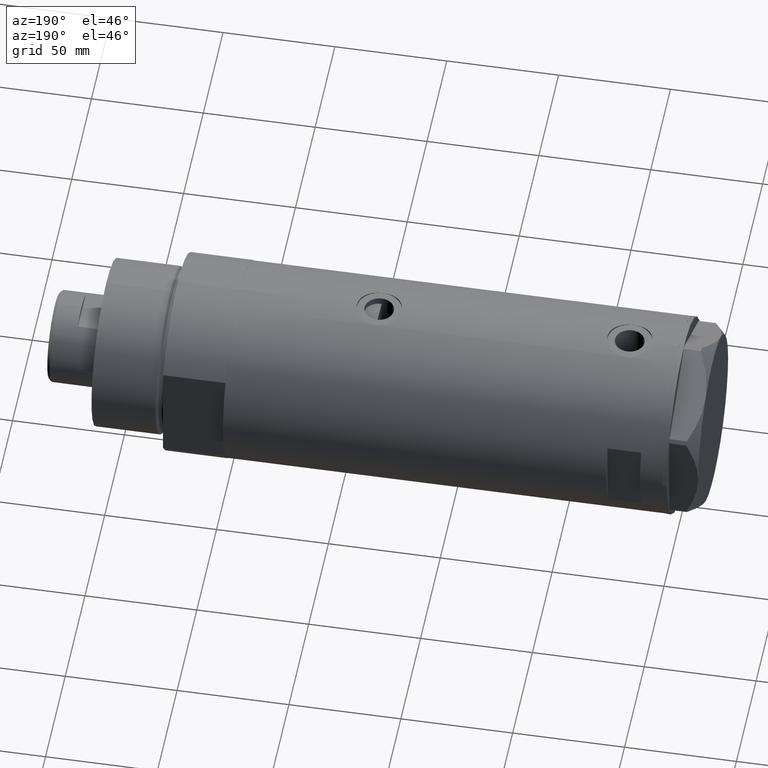
[diagram: clean part render]
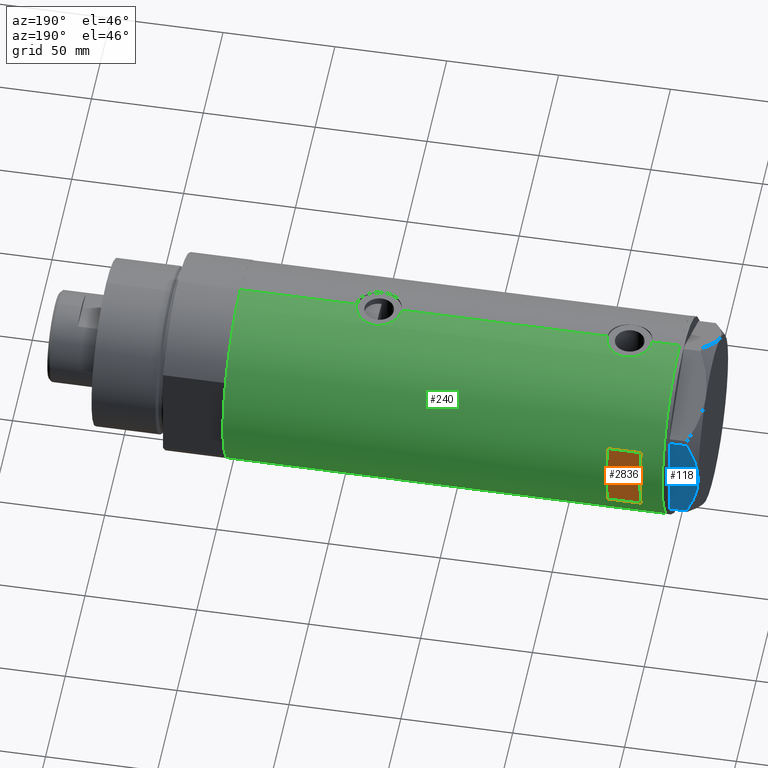
[diagram: same view with three faces highlighted in distinct colors, each labeled with its STEP entity id]
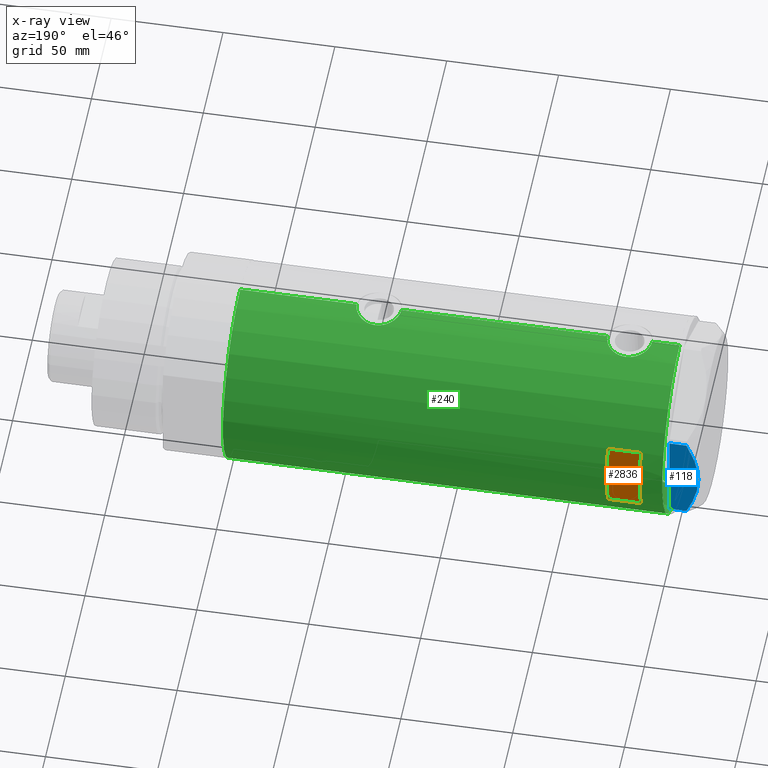
[diagram: x-ray of the same camera — body ghosted, the three highlighted faces saturated]
A machine part, auxiliary view with three faces highlighted in distinct colors.
The next image is the same camera in x-ray (body ghosted, the three faces saturated) — at least one of them is partly hidden behind the body in this view.
Their STEP definitions:

[orange] entity #2836 — the highlighted planar face has unit normal (0, -1, -0).
#26 = EDGE_CURVE ( 'NONE', #1117, #3101, #2279, .T. ) ;
#107 = EDGE_CURVE ( 'NONE', #2888, #1769, #2944, .T. ) ;
#284 = EDGE_LOOP ( 'NONE', ( #4212, #573, #4383, #3579 ) ) ;
#573 = ORIENTED_EDGE ( 'NONE', *, *, #107, .F. ) ;
#715 = VECTOR ( 'NONE', #3619, 1000.000000000000000 ) ;
#849 = AXIS2_PLACEMENT_3D ( 'NONE', #1237, #1973, #4079 ) ;
#1117 = VERTEX_POINT ( 'NONE', #2468 ) ;
#1130 = VECTOR ( 'NONE', #1269, 1000.000000000000000 ) ;
#1237 = CARTESIAN_POINT ( 'NONE',  ( -44.00000000000000000, 40.99999999999999289, 88.20000000000000284 ) ) ;
#1269 = DIRECTION ( 'NONE',  ( 1.000000000000000000, -0.000000000000000000, -0.000000000000000000 ) ) ;
#1418 = CARTESIAN_POINT ( 'NONE',  ( -15.96871942267132027, 40.99999999999999289, -98.20000000000000284 ) ) ;
#1552 = LINE ( 'NONE', #1587, #715 ) ;
#1587 = CARTESIAN_POINT ( 'NONE',  ( 15.96871942267132027, 40.99999999999999289, -98.20000000000000284 ) ) ;
#1769 = VERTEX_POINT ( 'NONE', #1905 ) ;
#1792 = VECTOR ( 'NONE', #3749, 1000.000000000000000 ) ;
#1903 = DIRECTION ( 'NONE',  ( 1.000000000000000000, -0.000000000000000000, -0.000000000000000000 ) ) ;
#1905 = CARTESIAN_POINT ( 'NONE',  ( 15.96871942267132027, 40.99999999999999289, 73.20000000000000284 ) ) ;
#1946 = EDGE_CURVE ( 'NONE', #2888, #1117, #3147, .T. ) ;
#1973 = DIRECTION ( 'NONE',  ( 0.000000000000000000, -1.000000000000000000, -0.000000000000000000 ) ) ;
#2279 = LINE ( 'NONE', #4379, #1130 ) ;
#2468 = CARTESIAN_POINT ( 'NONE',  ( -15.96871942267132027, 40.99999999999999289, 88.20000000000000284 ) ) ;
#2626 = CARTESIAN_POINT ( 'NONE',  ( 15.96871942267132027, 40.99999999999999289, 88.20000000000000284 ) ) ;
#2816 = CARTESIAN_POINT ( 'NONE',  ( -15.96871942267132027, 40.99999999999999289, 73.20000000000000284 ) ) ;
#2836 = ADVANCED_FACE ( 'NONE', ( #3647 ), #3721, .F. ) ;
#2888 = VERTEX_POINT ( 'NONE', #2816 ) ;
#2944 = LINE ( 'NONE', #2961, #4037 ) ;
#2961 = CARTESIAN_POINT ( 'NONE',  ( -44.00000000000000000, 40.99999999999999289, 73.20000000000000284 ) ) ;
#3101 = VERTEX_POINT ( 'NONE', #2626 ) ;
#3136 = EDGE_CURVE ( 'NONE', #3101, #1769, #1552, .T. ) ;
#3147 = LINE ( 'NONE', #1418, #1792 ) ;
#3579 = ORIENTED_EDGE ( 'NONE', *, *, #26, .T. ) ;
#3619 = DIRECTION ( 'NONE',  ( -0.000000000000000000, -0.000000000000000000, -1.000000000000000000 ) ) ;
#3647 = FACE_OUTER_BOUND ( 'NONE', #284, .T. ) ;
#3721 = PLANE ( 'NONE',  #849 ) ;
#3749 = DIRECTION ( 'NONE',  ( 0.000000000000000000, 0.000000000000000000, 1.000000000000000000 ) ) ;
#4037 = VECTOR ( 'NONE', #1903, 1000.000000000000000 ) ;
#4079 = DIRECTION ( 'NONE',  ( 0.000000000000000000, 0.000000000000000000, -1.000000000000000000 ) ) ;
#4212 = ORIENTED_EDGE ( 'NONE', *, *, #3136, .T. ) ;
#4379 = CARTESIAN_POINT ( 'NONE',  ( -44.00000000000000000, 40.99999999999999289, 88.20000000000000284 ) ) ;
#4383 = ORIENTED_EDGE ( 'NONE', *, *, #1946, .T. ) ;

[blue] entity #118 — the highlighted planar face has unit normal (0, -1, -0).
#4 = ORIENTED_EDGE ( 'NONE', *, *, #291, .T. ) ;
#103 = VECTOR ( 'NONE', #1067, 1000.000000000000000 ) ;
#118 = ADVANCED_FACE ( 'NONE', ( #3162 ), #3182, .F. ) ;
#128 = CARTESIAN_POINT ( 'NONE',  ( 37.75000000000000711, 0.9015134592203699615, 12.99999999999999112 ) ) ;
#218 = CARTESIAN_POINT ( 'NONE',  ( 37.75000000000000000, 20.67497266190835958, 7.709124142616976094 ) ) ;
#222 = DIRECTION ( 'NONE',  ( 4.775569585389645902E-16, -1.000000000000000000, 0.000000000000000000 ) ) ;
#282 = CARTESIAN_POINT ( 'NONE',  ( 37.75000000000000000, -3.615248338761618552, 12.99999999999998934 ) ) ;
#291 = EDGE_CURVE ( 'NONE', #4482, #2651, #4332, .T. ) ;
#296 = EDGE_CURVE ( 'NONE', #4258, #2211, #632, .T. ) ;
#376 = ORIENTED_EDGE ( 'NONE', *, *, #1473, .F. ) ;
#447 = VECTOR ( 'NONE', #3307, 1000.000000000000000 ) ;
#577 = CARTESIAN_POINT ( 'NONE',  ( 37.75000000000000711, 1.802777518484591547E-14, 13.00000000000000000 ) ) ;
#632 = B_SPLINE_CURVE_WITH_KNOTS ( 'NONE', 3,
 ( #2897, #128, #2235, #2545, #1844, #2215, #4268, #1869, #749, #3263, #3288, #3929, #2192, #3628 ),
 .UNSPECIFIED., .F., .F.,
 ( 4, 2, 2, 2, 2, 2, 4 ),
 ( 0.07749717587205659508, 0.08017617902235897598, 0.08285518217266137075, 0.08821318847326614643, 0.09357119477387092210, 0.09625019792417330300, 0.09892920107447569777 ),
 .UNSPECIFIED. ) ;
#656 = CARTESIAN_POINT ( 'NONE',  ( 37.75000000000000711, 1.802777518484591547E-14, 13.00000000000000000 ) ) ;
#749 = CARTESIAN_POINT ( 'NONE',  ( 37.75000000000000000, 14.04742653794396823, 10.50092616350622166 ) ) ;
#933 = EDGE_LOOP ( 'NONE', ( #376, #4349, #4, #2804, #1157 ) ) ;
#1047 = CARTESIAN_POINT ( 'NONE',  ( 37.75000000000002132, -20.67497266190835958, 13.00000000000000000 ) ) ;
#1067 = DIRECTION ( 'NONE',  ( 0.000000000000000000, 0.000000000000000000, 1.000000000000000000 ) ) ;
#1075 = EDGE_CURVE ( 'NONE', #2569, #4482, #3701, .T. ) ;
#1157 = ORIENTED_EDGE ( 'NONE', *, *, #296, .F. ) ;
#1367 = CARTESIAN_POINT ( 'NONE',  ( 37.75000000000001421, -14.89874562435959504, 10.17375260246623547 ) ) ;
#1434 = CARTESIAN_POINT ( 'NONE',  ( 37.75000000000002132, -21.79497266190837124, 13.00000000000000000 ) ) ;
#1473 = EDGE_CURVE ( 'NONE', #2569, #4258, #4263, .T. ) ;
#1844 = CARTESIAN_POINT ( 'NONE',  ( 37.75000000000000711, 4.503994958793054337, 12.74237531377021604 ) ) ;
#1869 = CARTESIAN_POINT ( 'NONE',  ( 37.75000000000000711, 12.34877760086738441, 11.06613894200179260 ) ) ;
#2033 = CARTESIAN_POINT ( 'NONE',  ( 37.75000000000002132, -11.46926194450820802, 11.30493988086502632 ) ) ;
#2055 = CARTESIAN_POINT ( 'NONE',  ( 37.75000000000002132, -20.67497266190837024, 7.709124142616982311 ) ) ;
#2074 = CARTESIAN_POINT ( 'NONE',  ( 37.75000000000001421, -19.06473524669325315, 8.482612457517156201 ) ) ;
#2119 = CARTESIAN_POINT ( 'NONE',  ( 37.75000000000001421, -12.33018559404072256, 11.04557586999680296 ) ) ;
#2192 = CARTESIAN_POINT ( 'NONE',  ( 37.75000000000000000, 19.86857906850807964, 8.096480699986591034 ) ) ;
#2211 = VERTEX_POINT ( 'NONE', #218 ) ;
#2215 = CARTESIAN_POINT ( 'NONE',  ( 37.75000000000000000, 7.161343005612795132, 12.36677985830370829 ) ) ;
#2235 = CARTESIAN_POINT ( 'NONE',  ( 37.75000000000000000, 1.811728074765807994, 12.96720910498919466 ) ) ;
#2433 = CARTESIAN_POINT ( 'NONE',  ( 37.75000000000002132, -17.42329546264822682, 9.202188366597432889 ) ) ;
#2545 = CARTESIAN_POINT ( 'NONE',  ( 37.75000000000000711, 3.611424898442247233, 12.83826937481875596 ) ) ;
#2569 = VERTEX_POINT ( 'NONE', #4475 ) ;
#2651 = VERTEX_POINT ( 'NONE', #4284 ) ;
#2804 = ORIENTED_EDGE ( 'NONE', *, *, #2935, .T. ) ;
#2897 = CARTESIAN_POINT ( 'NONE',  ( 37.75000000000000711, 1.802777518484591547E-14, 13.00000000000000000 ) ) ;
#2935 = EDGE_CURVE ( 'NONE', #2651, #2211, #3099, .T. ) ;
#3099 = LINE ( 'NONE', #3475, #103 ) ;
#3162 = FACE_OUTER_BOUND ( 'NONE', #933, .T. ) ;
#3182 = PLANE ( 'NONE',  #4257 ) ;
#3263 = CARTESIAN_POINT ( 'NONE',  ( 37.75000000000000711, 16.56731140591521978, 9.531835068628826235 ) ) ;
#3288 = CARTESIAN_POINT ( 'NONE',  ( 37.75000000000000000, 17.40390235304479560, 9.187919079516760235 ) ) ;
#3307 = DIRECTION ( 'NONE',  ( -4.775569585389645902E-16, 1.000000000000000000, 0.000000000000000000 ) ) ;
#3393 = DIRECTION ( 'NONE',  ( -1.000000000000000000, -4.775569585389645902E-16, 0.000000000000000000 ) ) ;
#3475 = CARTESIAN_POINT ( 'NONE',  ( 37.75000000000000000, 20.67497266190835958, 13.00000000000000000 ) ) ;
#3516 = DIRECTION ( 'NONE',  ( 0.000000000000000000, 0.000000000000000000, -1.000000000000000000 ) ) ;
#3628 = CARTESIAN_POINT ( 'NONE',  ( 37.75000000000000000, 20.67497266190835958, 7.709124142616976094 ) ) ;
#3683 = VECTOR ( 'NONE', #3516, 1000.000000000000000 ) ;
#3689 = CARTESIAN_POINT ( 'NONE',  ( 37.75000000000002132, -20.67497266190835958, 0.000000000000000000 ) ) ;
#3701 = LINE ( 'NONE', #1047, #3683 ) ;
#3798 = CARTESIAN_POINT ( 'NONE',  ( 37.75000000000002132, -14.04433099034386778, 10.48027127384610679 ) ) ;
#3900 = CARTESIAN_POINT ( 'NONE',  ( 37.75000000000002132, -21.79497266190837124, 0.000000000000000000 ) ) ;
#3929 = CARTESIAN_POINT ( 'NONE',  ( 37.75000000000000000, 19.05362936076134162, 8.470554105526112210 ) ) ;
#4201 = CARTESIAN_POINT ( 'NONE',  ( 37.75000000000000711, -7.143641079404811300, 12.47474846747315347 ) ) ;
#4257 = AXIS2_PLACEMENT_3D ( 'NONE', #1434, #3393, #222 ) ;
#4258 = VERTEX_POINT ( 'NONE', #577 ) ;
#4263 = B_SPLINE_CURVE_WITH_KNOTS ( 'NONE', 3,
 ( #2055, #2074, #2433, #1367, #3798, #2119, #2033, #4201, #282, #656 ),
 .UNSPECIFIED., .F., .F.,
 ( 4, 2, 2, 2, 4 ),
 ( 0.05601050456479946676, 0.06138217239161374711, 0.06406800630502089422, 0.06675384021842803439, 0.07749717587205659508 ),
 .UNSPECIFIED. ) ;
#4268 = CARTESIAN_POINT ( 'NONE',  ( 37.75000000000000711, 8.905753572404311313, 11.99914237172014353 ) ) ;
#4284 = CARTESIAN_POINT ( 'NONE',  ( 37.75000000000000000, 20.67497266190835958, 0.000000000000000000 ) ) ;
#4332 = LINE ( 'NONE', #3900, #447 ) ;
#4349 = ORIENTED_EDGE ( 'NONE', *, *, #1075, .T. ) ;
#4475 = CARTESIAN_POINT ( 'NONE',  ( 37.75000000000002132, -20.67497266190837024, 7.709124142616982311 ) ) ;
#4482 = VERTEX_POINT ( 'NONE', #3689 ) ;

[green] entity #240 — the highlighted cylindrical surface (partial cylindrical patch) has radius 44 mm, axis along (-1, -0, 0).
#1 = CARTESIAN_POINT ( 'NONE',  ( -44.00000000000000000, 5.388445781992449847E-15, -68.15000000000001990 ) ) ;
#7 = LINE ( 'NONE', #3564, #947 ) ;
#11 = CARTESIAN_POINT ( 'NONE',  ( 42.84850876528982155, 10.00026482975808051, -35.44941694529577347 ) ) ;
#29 = CARTESIAN_POINT ( 'NONE',  ( -43.64133398152736021, 5.607447751852158824, -64.66786045012435125 ) ) ;
#32 = ORIENTED_EDGE ( 'NONE', *, *, #2234, .F. ) ;
#37 = DIRECTION ( 'NONE',  ( 1.000000000000000000, 0.000000000000000000, 0.000000000000000000 ) ) ;
#44 = CARTESIAN_POINT ( 'NONE',  ( 44.00000000000002132, 0.3269372501759380545, -26.10000000000001918 ) ) ;
#64 = CARTESIAN_POINT ( 'NONE',  ( 42.96879251999280314, 9.470609476412120031, -39.32722899941056482 ) ) ;
#74 = CARTESIAN_POINT ( 'NONE',  ( -44.00000000000000711, 0.4081702738789189655, -68.15000000000003411 ) ) ;
#98 = CARTESIAN_POINT ( 'NONE',  ( -43.95549163632549750, 2.014511215452028825, -67.83058955704980519 ) ) ;
#102 = ORIENTED_EDGE ( 'NONE', *, *, #1341, .T. ) ;
#166 = CARTESIAN_POINT ( 'NONE',  ( -43.97181775256600389, 1.624866278047415680, 68.15107081614905837 ) ) ;
#172 = CARTESIAN_POINT ( 'NONE',  ( -43.83593455218809254, 3.811409182021277431, 79.17014927703502281 ) ) ;
#200 = CARTESIAN_POINT ( 'NONE',  ( -44.00000000000000000, 5.388445916248353619E-15, 98.20000000000000284 ) ) ;
#214 = CARTESIAN_POINT ( 'NONE',  ( 43.13962074468734897, 8.660138848900670538, 80.91089741163936822 ) ) ;
#221 = ORIENTED_EDGE ( 'NONE', *, *, #4110, .F. ) ;
#240 = ADVANCED_FACE ( 'NONE', ( #1150, #2921 ), #393, .T. ) ;
#257 = VECTOR ( 'NONE', #4495, 1000.000000000000000 ) ;
#261 = CARTESIAN_POINT ( 'NONE',  ( 42.96879251999280314, 9.470609476412112926, 72.67277100058944939 ) ) ;
#276 = CARTESIAN_POINT ( 'NONE',  ( -43.91413175532568403, 2.773555030353458850, -56.28415761633254277 ) ) ;
#277 = CARTESIAN_POINT ( 'NONE',  ( 44.00000000000000000, 2.836945177865671897E-15, -46.10000000000000853 ) ) ;
#294 = CARTESIAN_POINT ( 'NONE',  ( -43.55973179376098869, 6.209370339246239823, -62.72061767059870618 ) ) ;
#297 = ORIENTED_EDGE ( 'NONE', *, *, #3157, .F. ) ;
#310 = VECTOR ( 'NONE', #4294, 1000.000000000000000 ) ;
#320 = CARTESIAN_POINT ( 'NONE',  ( -43.97754480947186551, 1.419697478855586059, -55.80996723947924210 ) ) ;
#344 = CARTESIAN_POINT ( 'NONE',  ( 43.98169492814103165, 1.310824514239766536, 85.81919780380685836 ) ) ;
#355 = CARTESIAN_POINT ( 'NONE',  ( 43.71454618729810448, 5.012329428678959253, 84.55936974058313638 ) ) ;
#356 = CARTESIAN_POINT ( 'NONE',  ( 43.07598348983508174, 8.971306953823013686, -40.52969423187187914 ) ) ;
#372 = CARTESIAN_POINT ( 'NONE',  ( 43.80640706382536109, 4.134078575915387965, 85.01132821562090669 ) ) ;
#393 = CYLINDRICAL_SURFACE ( 'NONE', #980, 44.00000000000000000 ) ;
#422 = CARTESIAN_POINT ( 'NONE',  ( 0.000000000000000000, 0.000000000000000000, -98.20000000000000284 ) ) ;
#423 = CARTESIAN_POINT ( 'NONE',  ( 42.86370458161098185, 9.935807968041572735, -37.40904550429866049 ) ) ;
#431 = VERTEX_POINT ( 'NONE', #1005 ) ;
#433 = CARTESIAN_POINT ( 'NONE',  ( -43.62981559643959883, 5.696090409300659019, -64.48051365414528391 ) ) ;
#437 = VERTEX_POINT ( 'NONE', #277 ) ;
#441 = DIRECTION ( 'NONE',  ( 0.000000000000000000, 0.000000000000000000, 1.000000000000000000 ) ) ;
#517 = CARTESIAN_POINT ( 'NONE',  ( -43.91413175532567692, 2.773555030353453965, 79.81584238366747286 ) ) ;
#542 = CARTESIAN_POINT ( 'NONE',  ( -43.61859254253774054, 5.782454868881351295, 76.59786400894466851 ) ) ;
#563 = CARTESIAN_POINT ( 'NONE',  ( -43.55382423478827292, 6.250151562062086441, 73.79410470512661391 ) ) ;
#585 = CARTESIAN_POINT ( 'NONE',  ( 43.35294442506074120, 7.532526048221051873, 69.29064585508892549 ) ) ;
#588 = CARTESIAN_POINT ( 'NONE',  ( -43.64133398152736021, 5.607447751852152606, 71.43213954987568570 ) ) ;
#612 = CARTESIAN_POINT ( 'NONE',  ( 43.27822890220284791, 7.945655169171516263, 69.79274616710709722 ) ) ;
#613 = CARTESIAN_POINT ( 'NONE',  ( 43.94229162222111285, 2.275476993733913655, -45.84314464222307350 ) ) ;
#631 = VERTEX_POINT ( 'NONE', #1593 ) ;
#635 = CARTESIAN_POINT ( 'NONE',  ( 43.07641822757289418, 8.969229373860565957, 80.33396235790173989 ) ) ;
#650 = DIRECTION ( 'NONE',  ( 0.000000000000000000, 0.000000000000000000, 1.000000000000000000 ) ) ;
#651 = CARTESIAN_POINT ( 'NONE',  ( -43.83593455218809964, 3.811409182021281428, -56.92985072296500704 ) ) ;
#675 = CARTESIAN_POINT ( 'NONE',  ( 43.97062489912108418, 1.639461988184795604, 85.77014626665985020 ) ) ;
#686 = CARTESIAN_POINT ( 'NONE',  ( 43.77712723341632994, 4.432620652875498557, 84.86995009759974096 ) ) ;
#695 = ORIENTED_EDGE ( 'NONE', *, *, #2640, .F. ) ;
#704 = VERTEX_POINT ( 'NONE', #200 ) ;
#711 = CARTESIAN_POINT ( 'NONE',  ( 43.35294442506074120, 7.532526048221052761, -42.70935414491112425 ) ) ;
#715 = VECTOR ( 'NONE', #3619, 1000.000000000000000 ) ;
#744 = CARTESIAN_POINT ( 'NONE',  ( -43.99413512814552263, 0.8228129877960710381, -68.10908314325826041 ) ) ;
#753 = DIRECTION ( 'NONE',  ( 1.000000000000000000, 0.000000000000000000, 0.000000000000000000 ) ) ;
#777 = CARTESIAN_POINT ( 'NONE',  ( 43.61291203895919466, 5.829986172017925128, -44.23128710786829743 ) ) ;
#797 = CARTESIAN_POINT ( 'NONE',  ( 43.92756755766649235, 2.604528169608121946, -26.42286588097656974 ) ) ;
#858 = EDGE_CURVE ( 'NONE', #2835, #4405, #3219, .T. ) ;
#868 = VECTOR ( 'NONE', #441, 1000.000000000000000 ) ;
#876 = CARTESIAN_POINT ( 'NONE',  ( -43.99413512814552263, 0.8228129877960659311, 67.99091685674179075 ) ) ;
#902 = CARTESIAN_POINT ( 'NONE',  ( -43.66555354895124452, 5.415612800338318600, 77.32656357177557993 ) ) ;
#920 = DIRECTION ( 'NONE',  ( 0.000000000000000000, 0.000000000000000000, 1.000000000000000000 ) ) ;
#925 = CARTESIAN_POINT ( 'NONE',  ( -43.55973179376100290, 6.209370339246232717, 73.37938232940132366 ) ) ;
#947 = VECTOR ( 'NONE', #1151, 1000.000000000000000 ) ;
#951 = CARTESIAN_POINT ( 'NONE',  ( 43.46520118248735542, 6.843279251446916511, 68.60101672787835980 ) ) ;
#954 = CARTESIAN_POINT ( 'NONE',  ( -43.59995593514495482, 5.920088975424566691, 76.21417908691780951 ) ) ;
#971 = CARTESIAN_POINT ( 'NONE',  ( 44.00000000000002132, 0.6630566900259825536, 65.90000000000003411 ) ) ;
#978 = CARTESIAN_POINT ( 'NONE',  ( -43.57657963456318839, 6.089610171536609329, -60.47821460419189066 ) ) ;
#980 = AXIS2_PLACEMENT_3D ( 'NONE', #4290, #2167, #37 ) ;
#993 = CIRCLE ( 'NONE', #4197, 44.00000000000000000 ) ;
#999 = ORIENTED_EDGE ( 'NONE', *, *, #1885, .F. ) ;
#1005 = CARTESIAN_POINT ( 'NONE',  ( -44.00000000000000000, 6.472851849715296073E-16, -55.65000000000000568 ) ) ;
#1017 = CARTESIAN_POINT ( 'NONE',  ( 42.92624534982631701, 9.661626915142809580, 73.29991995855291975 ) ) ;
#1039 = CARTESIAN_POINT ( 'NONE',  ( 43.50382207688846847, 6.605942769308303930, 83.43604688838220795 ) ) ;
#1050 = B_SPLINE_CURVE_WITH_KNOTS ( 'NONE', 3,
 ( #2320, #971, #4164, #1703, #2702, #2369, #3713, #3802, #3470, #3759, #1373, #1307, #951, #585, #612, #3779, #4141, #3428, #3409, #1720, #261, #1017, #3139, #4494, #1969, #3094, #4117, #3386, #2348, #2392, #635, #214, #4070, #1636, #3042, #3287, #2965, #1039, #3205, #3821, #355, #686, #372, #2833, #2781, #675, #344, #4131, #1379, #4151 ),
 .UNSPECIFIED., .F., .F.,
 ( 4, 2, 2, 2, 2, 2, 2, 2, 2, 2, 2, 2, 2, 2, 2, 2, 2, 2, 2, 2, 2, 2, 2, 2, 4 ),
 ( 2.479523669370822448E-18, 0.001960456513248879339, 0.002940684769873313370, 0.003920913026497747401, 0.005881369539746631077, 0.006861597796371071180, 0.007841826052995510415, 0.009802282566244392356, 0.01078251082286883072, 0.01176273907949326909, 0.01274296733611770746, 0.01372319559274214583, 0.01568365210599106593, 0.01764410861923998430, 0.01960456513248890267, 0.02058479338911334278, 0.02156502164573777941, 0.02254524990236221951, 0.02352547815898665615, 0.02548593467223552941, 0.02646616292885996952, 0.02744639118548440615, 0.02940684769873327942, 0.03038707595535771258, 0.03136730421198213881 ),
 .UNSPECIFIED. ) ;
#1061 = CARTESIAN_POINT ( 'NONE',  ( 43.57657781376907025, 6.094873943596692101, -44.03474301119596390 ) ) ;
#1086 = CARTESIAN_POINT ( 'NONE',  ( 43.97062489912107708, 1.639461988184801156, -26.22985373334014625 ) ) ;
#1096 = CARTESIAN_POINT ( 'NONE',  ( -43.80687348212602217, 4.128385987736840512, -66.61048743310966813 ) ) ;
#1117 = VERTEX_POINT ( 'NONE', #2468 ) ;
#1129 = CARTESIAN_POINT ( 'NONE',  ( 43.50265731352001097, 6.601850423195605444, -43.61819167298953914 ) ) ;
#1150 = FACE_BOUND ( 'NONE', #4457, .T. ) ;
#1151 = DIRECTION ( 'NONE',  ( 0.000000000000000000, 0.000000000000000000, 1.000000000000000000 ) ) ;
#1153 = CARTESIAN_POINT ( 'NONE',  ( 44.00000000000000000, 0.000000000000000000, -98.20000000000000284 ) ) ;
#1155 = CARTESIAN_POINT ( 'NONE',  ( 43.17306590853065273, 8.492365194390522731, -30.80987467306545113 ) ) ;
#1207 = CARTESIAN_POINT ( 'NONE',  ( -43.67867890111967455, 5.309046579850785541, 70.89577220923978018 ) ) ;
#1212 = CIRCLE ( 'NONE', #1430, 44.00000000000000000 ) ;
#1233 = CARTESIAN_POINT ( 'NONE',  ( -43.58362292239462477, 6.039157555656595733, 75.82263578448043972 ) ) ;
#1244 = EDGE_CURVE ( 'NONE', #3498, #2053, #1212, .T. ) ;
#1260 = CARTESIAN_POINT ( 'NONE',  ( -44.00000000000000000, 5.388445916248353619E-15, -98.20000000000000284 ) ) ;
#1285 = CARTESIAN_POINT ( 'NONE',  ( -43.99999999999997158, 0.4081702738789203533, 67.94999999999997442 ) ) ;
#1290 = CARTESIAN_POINT ( 'NONE',  ( -44.00000000000000000, 4.742435893011557518E-16, 80.45000000000001705 ) ) ;
#1307 = CARTESIAN_POINT ( 'NONE',  ( 43.50265731352001808, 6.601850423195591233, 68.38180832701048928 ) ) ;
#1331 = CARTESIAN_POINT ( 'NONE',  ( 44.00000000000000000, 2.836945177865671897E-15, -46.10000000000000853 ) ) ;
#1341 = EDGE_CURVE ( 'NONE', #2835, #704, #3245, .T. ) ;
#1344 = CARTESIAN_POINT ( 'NONE',  ( -43.58362292239463187, 6.039157555656604615, -60.27736421551959722 ) ) ;
#1352 = LINE ( 'NONE', #4118, #257 ) ;
#1373 = CARTESIAN_POINT ( 'NONE',  ( 43.57657781376909156, 6.094873943596678778, 67.96525698880405741 ) ) ;
#1379 = CARTESIAN_POINT ( 'NONE',  ( 44.00000000000000711, 0.3269372501759374994, 85.90000000000001990 ) ) ;
#1400 = DIRECTION ( 'NONE',  ( 1.000000000000000000, 0.000000000000000000, 0.000000000000000000 ) ) ;
#1401 = CARTESIAN_POINT ( 'NONE',  ( -43.59867737633045692, 5.931302618788640402, -63.91249495029889260 ) ) ;
#1409 = CARTESIAN_POINT ( 'NONE',  ( 43.13897484505559987, 8.663345277311671921, -41.10529600060514355 ) ) ;
#1415 = EDGE_CURVE ( 'NONE', #3498, #437, #3736, .T. ) ;
#1418 = CARTESIAN_POINT ( 'NONE',  ( -15.96871942267132027, 40.99999999999999289, -98.20000000000000284 ) ) ;
#1421 = ORIENTED_EDGE ( 'NONE', *, *, #3136, .F. ) ;
#1430 = AXIS2_PLACEMENT_3D ( 'NONE', #422, #1804, #753 ) ;
#1431 = CARTESIAN_POINT ( 'NONE',  ( 44.00000000000000000, -3.917142467416489149E-21, -26.10000000000000497 ) ) ;
#1477 = CARTESIAN_POINT ( 'NONE',  ( 0.000000000000000000, 0.000000000000000000, 73.20000000000018758 ) ) ;
#1499 = CARTESIAN_POINT ( 'NONE',  ( 43.50382207688846847, 6.605942769308304818, -28.56395311161779915 ) ) ;
#1511 = CARTESIAN_POINT ( 'NONE',  ( -43.87596296923811678, 3.305851531861740522, -67.20803585876262787 ) ) ;
#1552 = LINE ( 'NONE', #1587, #715 ) ;
#1587 = CARTESIAN_POINT ( 'NONE',  ( 15.96871942267132027, 40.99999999999999289, -98.20000000000000284 ) ) ;
#1589 = CARTESIAN_POINT ( 'NONE',  ( -44.00000000000000000, 5.388445781982983516E-15, 67.95000000000001705 ) ) ;
#1593 = CARTESIAN_POINT ( 'NONE',  ( 44.00000000000000000, -3.917142467416489149E-21, -26.10000000000000497 ) ) ;
#1595 = CARTESIAN_POINT ( 'NONE',  ( -43.71938389712227746, 4.966728892888062852, 78.01614452340872674 ) ) ;
#1602 = ORIENTED_EDGE ( 'NONE', *, *, #2587, .F. ) ;
#1609 = CARTESIAN_POINT ( 'NONE',  ( 44.00000000000000000, -2.552687571866728611E-15, 65.90000000000001990 ) ) ;
#1621 = CARTESIAN_POINT ( 'NONE',  ( -43.74833112883977293, 4.708208586952001617, 78.33050383508880543 ) ) ;
#1622 = VERTEX_POINT ( 'NONE', #3242 ) ;
#1636 = CARTESIAN_POINT ( 'NONE',  ( 43.24261242176996234, 8.130827601038829400, 81.73055186854172405 ) ) ;
#1638 = CARTESIAN_POINT ( 'NONE',  ( -43.74805001749254529, 4.711035428619386956, 70.07223935874202425 ) ) ;
#1652 = CIRCLE ( 'NONE', #4192, 44.00000000000000000 ) ;
#1703 = CARTESIAN_POINT ( 'NONE',  ( 43.94229162222111285, 2.275476993733910547, 66.15685535777693360 ) ) ;
#1704 = CARTESIAN_POINT ( 'NONE',  ( -44.00000000000000000, 5.388445781992449847E-15, -68.15000000000001990 ) ) ;
#1712 = ORIENTED_EDGE ( 'NONE', *, *, #3267, .F. ) ;
#1720 = CARTESIAN_POINT ( 'NONE',  ( 42.99303682946563043, 9.360292926890506848, 72.36575779792798357 ) ) ;
#1761 = CARTESIAN_POINT ( 'NONE',  ( 43.04652664061919864, 9.111152824375430725, -31.96541990785411969 ) ) ;
#1769 = VERTEX_POINT ( 'NONE', #1905 ) ;
#1784 = ORIENTED_EDGE ( 'NONE', *, *, #1946, .F. ) ;
#1787 = VECTOR ( 'NONE', #2648, 1000.000000000000000 ) ;
#1792 = VECTOR ( 'NONE', #3749, 1000.000000000000000 ) ;
#1804 = DIRECTION ( 'NONE',  ( 0.000000000000000000, 0.000000000000000000, 1.000000000000000000 ) ) ;
#1805 = AXIS2_PLACEMENT_3D ( 'NONE', #1477, #4181, #2880 ) ;
#1806 = CARTESIAN_POINT ( 'NONE',  ( 42.92624534982631701, 9.661626915142814909, -38.70008004144708735 ) ) ;
#1819 = CARTESIAN_POINT ( 'NONE',  ( -43.83576802966639008, 3.813209221108468938, -66.86865490354712449 ) ) ;
#1829 = CARTESIAN_POINT ( 'NONE',  ( 43.07641822757289418, 8.969229373860574839, -31.66603764209828498 ) ) ;
#1836 = CARTESIAN_POINT ( 'NONE',  ( -43.97181775256600389, 1.624866278047417012, -67.94892918385096436 ) ) ;
#1885 = EDGE_CURVE ( 'NONE', #2188, #704, #1652, .T. ) ;
#1897 = CARTESIAN_POINT ( 'NONE',  ( -43.57657963456318839, 6.089610171536606664, 75.62178539580813208 ) ) ;
#1905 = CARTESIAN_POINT ( 'NONE',  ( 15.96871942267132027, 40.99999999999999289, 73.20000000000000284 ) ) ;
#1912 = CARTESIAN_POINT ( 'NONE',  ( 44.00000000000000000, 0.000000000000000000, -98.20000000000000284 ) ) ;
#1946 = EDGE_CURVE ( 'NONE', #2888, #1117, #3147, .T. ) ;
#1969 = CARTESIAN_POINT ( 'NONE',  ( 42.84863276153905787, 9.999733523508361088, 75.24130095249223871 ) ) ;
#1992 = CARTESIAN_POINT ( 'NONE',  ( -43.87596296923810968, 3.305851531861728976, 68.89196414123739487 ) ) ;
#2015 = CARTESIAN_POINT ( 'NONE',  ( 43.92466059386730137, 2.593004216484785740, -45.76356669671356059 ) ) ;
#2019 = DIRECTION ( 'NONE',  ( -0.000000000000000000, -0.000000000000000000, -1.000000000000000000 ) ) ;
#2028 = CARTESIAN_POINT ( 'NONE',  ( -43.71938389712227035, 4.966728892888067293, -58.08385547659131021 ) ) ;
#2045 = DIRECTION ( 'NONE',  ( 1.000000000000000000, -8.881784197001252323E-16, 0.000000000000000000 ) ) ;
#2051 = CARTESIAN_POINT ( 'NONE',  ( -44.00000000000000000, 0.4135148353567994484, -55.64999999999999858 ) ) ;
#2053 = VERTEX_POINT ( 'NONE', #3599 ) ;
#2060 = CARTESIAN_POINT ( 'NONE',  ( 0.000000000000000000, 0.000000000000000000, 88.20000000000000284 ) ) ;
#2069 = CARTESIAN_POINT ( 'NONE',  ( -43.95446647384544292, 2.010857111636600969, -55.97875773636064878 ) ) ;
#2101 = CARTESIAN_POINT ( 'NONE',  ( 43.27822890220284080, 7.945655169171516263, -42.20725383289290278 ) ) ;
#2113 = CARTESIAN_POINT ( 'NONE',  ( -43.64122538274736485, 5.608286354294326870, -59.13388613036661212 ) ) ;
#2121 = CARTESIAN_POINT ( 'NONE',  ( -44.00000000000000000, 4.742435893011557518E-16, 80.45000000000001705 ) ) ;
#2123 = ORIENTED_EDGE ( 'NONE', *, *, #1415, .F. ) ;
#2127 = B_SPLINE_CURVE_WITH_KNOTS ( 'NONE', 3,
 ( #1331, #2730, #4094, #613, #2015, #3429, #3568, #3527, #3549, #777, #1061, #1129, #3907, #711, #2101, #4227, #1409, #356, #2173, #2905, #64, #1806, #4523, #423, #2530, #11, #2147, #3230, #4540, #1761, #1829, #2834, #1155, #3179, #3512, #3246, #2857, #1499, #4273, #2128, #2460, #2550, #4205, #3934, #797, #1086, #3842, #2195, #44, #1431 ),
 .UNSPECIFIED., .F., .F.,
 ( 4, 2, 2, 2, 2, 2, 2, 2, 2, 2, 2, 2, 2, 2, 2, 2, 2, 2, 2, 2, 2, 2, 2, 2, 4 ),
 ( 2.755634020688765633E-18, 0.001960456513248879772, 0.002940684769873318574, 0.003920913026497756942, 0.005881369539746635414, 0.006861597796371073782, 0.007841826052995512150, 0.009802282566244404499, 0.01078251082286885675, 0.01176273907949330899, 0.01274296733611776297, 0.01372319559274221522, 0.01568365210599110063, 0.01764410861923998777, 0.01960456513248886798, 0.02058479338911332196, 0.02156502164573776553, 0.02254524990236220564, 0.02352547815898664574, 0.02548593467223553288, 0.02646616292885997299, 0.02744639118548441656, 0.02940684769873329329, 0.03038707595535772993, 0.03136730421198216656 ),
 .UNSPECIFIED. ) ;
#2128 = CARTESIAN_POINT ( 'NONE',  ( 43.68141895191831026, 5.292250119194736868, -27.60895047714807049 ) ) ;
#2147 = CARTESIAN_POINT ( 'NONE',  ( 42.86396777580258544, 9.934664719553399692, -34.78423800973479274 ) ) ;
#2167 = DIRECTION ( 'NONE',  ( 0.000000000000000000, 0.000000000000000000, 1.000000000000000000 ) ) ;
#2173 = CARTESIAN_POINT ( 'NONE',  ( 43.04663170950394857, 9.110642017076081345, -40.23547502190394454 ) ) ;
#2184 = CARTESIAN_POINT ( 'NONE',  ( -43.92459115390705193, 2.581892149021001615, -67.59545827073348789 ) ) ;
#2188 = VERTEX_POINT ( 'NONE', #3719 ) ;
#2195 = CARTESIAN_POINT ( 'NONE',  ( 43.99635668041006653, 0.6544833911834557760, -26.11599291522469457 ) ) ;
#2234 = EDGE_CURVE ( 'NONE', #1117, #3101, #993, .T. ) ;
#2246 = LINE ( 'NONE', #1260, #2832 ) ;
#2249 = CARTESIAN_POINT ( 'NONE',  ( -43.55963022497231663, 6.210088036293396563, 75.01646163017424840 ) ) ;
#2297 = CARTESIAN_POINT ( 'NONE',  ( -43.92459115390705193, 2.581892149020998950, 68.50454172926654905 ) ) ;
#2320 = CARTESIAN_POINT ( 'NONE',  ( 44.00000000000000000, -2.552687571866728611E-15, 65.90000000000001990 ) ) ;
#2343 = CARTESIAN_POINT ( 'NONE',  ( 44.00000000000000000, 0.000000000000000000, -98.20000000000000284 ) ) ;
#2348 = CARTESIAN_POINT ( 'NONE',  ( 42.96547725528407824, 9.488625330801083280, 79.12450347211071744 ) ) ;
#2369 = CARTESIAN_POINT ( 'NONE',  ( 43.88297407487991109, 3.222431612395379119, 66.42771797970659975 ) ) ;
#2380 = CARTESIAN_POINT ( 'NONE',  ( -43.55386785759470314, 6.249847571481745412, -61.48945052382045873 ) ) ;
#2392 = CARTESIAN_POINT ( 'NONE',  ( 43.04652664061922707, 9.111152824375430725, 80.03458009214594426 ) ) ;
#2417 = EDGE_CURVE ( 'NONE', #2053, #3177, #2246, .T. ) ;
#2428 = CARTESIAN_POINT ( 'NONE',  ( -43.66555354895123031, 5.415612800338319488, -58.77343642822444281 ) ) ;
#2460 = CARTESIAN_POINT ( 'NONE',  ( 43.71454618729809738, 5.012329428678962806, -27.44063025941690270 ) ) ;
#2468 = CARTESIAN_POINT ( 'NONE',  ( -15.96871942267132027, 40.99999999999999289, 88.20000000000000284 ) ) ;
#2472 = CARTESIAN_POINT ( 'NONE',  ( -43.80646232387289274, 4.132500855894034153, -57.19354414596645597 ) ) ;
#2490 = ORIENTED_EDGE ( 'NONE', *, *, #2417, .T. ) ;
#2530 = CARTESIAN_POINT ( 'NONE',  ( 42.84863276153905787, 9.999733523508369970, -36.75869904750778261 ) ) ;
#2550 = CARTESIAN_POINT ( 'NONE',  ( 43.77712723341632284, 4.432620652875501222, -27.13004990240029457 ) ) ;
#2587 = EDGE_CURVE ( 'NONE', #3466, #1622, #1050, .T. ) ;
#2626 = CARTESIAN_POINT ( 'NONE',  ( 15.96871942267132027, 40.99999999999999289, 88.20000000000000284 ) ) ;
#2627 = CARTESIAN_POINT ( 'NONE',  ( -43.88883895882799635, 3.130924084324101297, 68.78687544251856423 ) ) ;
#2634 = CARTESIAN_POINT ( 'NONE',  ( -43.94507179847653333, 2.206027755801677870, 80.05131522281796208 ) ) ;
#2638 = ORIENTED_EDGE ( 'NONE', *, *, #858, .F. ) ;
#2640 = EDGE_CURVE ( 'NONE', #431, #3177, #4365, .T. ) ;
#2648 = DIRECTION ( 'NONE',  ( 0.000000000000000000, 0.000000000000000000, 1.000000000000000000 ) ) ;
#2681 = CARTESIAN_POINT ( 'NONE',  ( -43.66575107734168171, 5.414026674167576658, 71.07064911962299902 ) ) ;
#2702 = CARTESIAN_POINT ( 'NONE',  ( 43.92466059386729427, 2.593004216484783964, 66.23643330328646073 ) ) ;
#2707 = CARTESIAN_POINT ( 'NONE',  ( -43.80687348212602217, 4.128385987736833407, 69.48951256689038303 ) ) ;
#2730 = CARTESIAN_POINT ( 'NONE',  ( 44.00000000000002132, 0.6630566900259828866, -46.10000000000002984 ) ) ;
#2739 = CARTESIAN_POINT ( 'NONE',  ( -43.55963022497232373, 6.210088036293401004, -61.08353836982577434 ) ) ;
#2781 = CARTESIAN_POINT ( 'NONE',  ( 43.92756755766649235, 2.604528169608113064, 85.57713411902345513 ) ) ;
#2806 = CARTESIAN_POINT ( 'NONE',  ( -43.59995593514495482, 5.920088975424572908, -59.88582091308221322 ) ) ;
#2816 = CARTESIAN_POINT ( 'NONE',  ( -15.96871942267132027, 40.99999999999999289, 73.20000000000000284 ) ) ;
#2821 = CARTESIAN_POINT ( 'NONE',  ( -43.97068415157985299, 1.617901284326948907, -55.85954871699957636 ) ) ;
#2825 = CARTESIAN_POINT ( 'NONE',  ( -44.00000000000000000, 5.388445781982983516E-15, 67.95000000000001705 ) ) ;
#2832 = VECTOR ( 'NONE', #920, 1000.000000000000000 ) ;
#2833 = CARTESIAN_POINT ( 'NONE',  ( 43.88561577393361546, 3.228056721358708359, 85.38721665727824472 ) ) ;
#2834 = CARTESIAN_POINT ( 'NONE',  ( 43.13962074468733476, 8.660138848900677644, -31.08910258836065665 ) ) ;
#2835 = VERTEX_POINT ( 'NONE', #1290 ) ;
#2857 = CARTESIAN_POINT ( 'NONE',  ( 43.39051256276903246, 7.301963662770314833, -29.25975531787057804 ) ) ;
#2880 = DIRECTION ( 'NONE',  ( 0.000000000000000000, 1.000000000000000000, -4.731064025391292434E-15 ) ) ;
#2888 = VERTEX_POINT ( 'NONE', #2816 ) ;
#2905 = CARTESIAN_POINT ( 'NONE',  ( 42.99303682946562333, 9.360292926890512177, -39.63424220207205195 ) ) ;
#2917 = ORIENTED_EDGE ( 'NONE', *, *, #3324, .F. ) ;
#2921 = FACE_OUTER_BOUND ( 'NONE', #3398, .T. ) ;
#2940 = CARTESIAN_POINT ( 'NONE',  ( -43.74805001749253819, 4.711035428619393173, -66.02776064125799849 ) ) ;
#2965 = CARTESIAN_POINT ( 'NONE',  ( 43.39051256276903246, 7.301963662770311281, 82.74024468212945749 ) ) ;
#2979 = CARTESIAN_POINT ( 'NONE',  ( -43.95446647384543581, 2.010857111636599637, 80.12124226363938817 ) ) ;
#2982 = ORIENTED_EDGE ( 'NONE', *, *, #3775, .T. ) ;
#3006 = CARTESIAN_POINT ( 'NONE',  ( -43.97068415157983878, 1.617901284326946909, 80.24045128300046770 ) ) ;
#3015 = LINE ( 'NONE', #1153, #868 ) ;
#3042 = CARTESIAN_POINT ( 'NONE',  ( 43.27871541412905287, 7.937063204555986573, 81.99174997246032603 ) ) ;
#3079 = CARTESIAN_POINT ( 'NONE',  ( -43.99417607942194763, 0.8200150578638748522, 80.40936672516741623 ) ) ;
#3094 = CARTESIAN_POINT ( 'NONE',  ( 42.84850876528983576, 10.00026482975808229, 76.55058305470424784 ) ) ;
#3101 = VERTEX_POINT ( 'NONE', #2626 ) ;
#3103 = CARTESIAN_POINT ( 'NONE',  ( -43.74833112883975872, 4.708208586952008723, -57.76949616491121731 ) ) ;
#3136 = EDGE_CURVE ( 'NONE', #3101, #1769, #1552, .T. ) ;
#3139 = CARTESIAN_POINT ( 'NONE',  ( 42.90786968859021044, 9.742642423712171151, 73.62197703452876851 ) ) ;
#3147 = LINE ( 'NONE', #1418, #1792 ) ;
#3157 = EDGE_CURVE ( 'NONE', #631, #3466, #1352, .T. ) ;
#3177 = VERTEX_POINT ( 'NONE', #1704 ) ;
#3179 = CARTESIAN_POINT ( 'NONE',  ( 43.24261242176996234, 8.130827601038834729, -30.26944813145831148 ) ) ;
#3205 = CARTESIAN_POINT ( 'NONE',  ( 43.57805684119164624, 6.103282219787165452, 83.84816201647861078 ) ) ;
#3219 = B_SPLINE_CURVE_WITH_KNOTS ( 'NONE', 3,
 ( #2121, #3523, #3079, #3649, #3006, #2979, #2634, #517, #3346, #172, #3725, #1621, #1595, #4378, #902, #3697, #542, #954, #1233, #1897, #2249, #4370, #563, #925, #4394, #3716, #3983, #588, #2681, #1207, #3339, #1638, #2707, #3318, #1992, #2627, #3363, #2297, #4073, #166, #876, #1285, #1589 ),
 .UNSPECIFIED., .F., .F.,
 ( 4, 2, 2, 2, 2, 2, 2, 2, 1, 2, 2, 2, 2, 2, 2, 2, 2, 2, 2, 2, 2, 4 ),
 ( 4.607873388256435088E-19, 0.001222818171749670340, 0.001834227257624505619, 0.002445636343499341114, 0.003668454515249027284, 0.004891272686998713454, 0.006114090858748398756, 0.006725499944623259188, 0.007336909030498119620, 0.007948318116372978318, 0.008559727202247837882, 0.009782545373997518848, 0.01100536354574719981, 0.01222818171749687904, 0.01283959080337173861, 0.01345099988924659644, 0.01467381806099631383, 0.01589663623274603296, 0.01650804531862088906, 0.01711945440449574862, 0.01834227257624546428, 0.01956509074799517994 ),
 .UNSPECIFIED. ) ;
#3230 = CARTESIAN_POINT ( 'NONE',  ( 42.92259096922158790, 9.678247830257131312, -33.49994006971207483 ) ) ;
#3238 = CARTESIAN_POINT ( 'NONE',  ( -43.66575107734169592, 5.414026674167585540, -65.02935088037702371 ) ) ;
#3242 = CARTESIAN_POINT ( 'NONE',  ( 44.00000000000000000, -3.917104602093038540E-21, 85.90000000000000568 ) ) ;
#3245 = LINE ( 'NONE', #3932, #310 ) ;
#3246 = CARTESIAN_POINT ( 'NONE',  ( 43.35257020184194232, 7.523219862841651562, -29.50397445915864481 ) ) ;
#3256 = CARTESIAN_POINT ( 'NONE',  ( -43.67867890111968876, 5.309046579850795311, -65.20422779076025677 ) ) ;
#3267 = EDGE_CURVE ( 'NONE', #437, #631, #2127, .T. ) ;
#3287 = CARTESIAN_POINT ( 'NONE',  ( 43.35257020184194232, 7.523219862841656891, 82.49602554084137296 ) ) ;
#3318 = CARTESIAN_POINT ( 'NONE',  ( -43.83576802966640429, 3.813209221108459168, 69.23134509645289825 ) ) ;
#3324 = EDGE_CURVE ( 'NONE', #1769, #2888, #4214, .T. ) ;
#3339 = CARTESIAN_POINT ( 'NONE',  ( -43.71901936021023971, 4.969830049220626655, 70.38832362301124590 ) ) ;
#3346 = CARTESIAN_POINT ( 'NONE',  ( -43.88968326835893663, 3.132363423941621150, 79.62379232356479974 ) ) ;
#3363 = CARTESIAN_POINT ( 'NONE',  ( -43.91315028150560096, 2.769134003554746482, 68.59317380624599991 ) ) ;
#3386 = CARTESIAN_POINT ( 'NONE',  ( 42.92259096922160211, 9.678247830257127760, 78.50005993028796070 ) ) ;
#3398 = EDGE_LOOP ( 'NONE', ( #3873, #2490, #695, #2982, #2638, #102, #999, #221, #1602, #297, #1712, #2123 ) ) ;
#3409 = CARTESIAN_POINT ( 'NONE',  ( 43.04663170950395568, 9.110642017076083121, 71.76452497809607678 ) ) ;
#3428 = CARTESIAN_POINT ( 'NONE',  ( 43.07598348983507464, 8.971306953823011909, 71.47030576812815639 ) ) ;
#3429 = CARTESIAN_POINT ( 'NONE',  ( 43.88297407487991109, 3.222431612395382228, -45.57228202029342157 ) ) ;
#3444 = CARTESIAN_POINT ( 'NONE',  ( -43.58221825186232223, 6.049526113783029402, -63.52262970817960763 ) ) ;
#3466 = VERTEX_POINT ( 'NONE', #1609 ) ;
#3470 = CARTESIAN_POINT ( 'NONE',  ( 43.71659050864931828, 5.015880325000608764, 67.22433174036180503 ) ) ;
#3480 = CARTESIAN_POINT ( 'NONE',  ( -43.99417607942193342, 0.8200150578638759624, -55.69063327483257808 ) ) ;
#3498 = VERTEX_POINT ( 'NONE', #1912 ) ;
#3512 = CARTESIAN_POINT ( 'NONE',  ( 43.27871541412904577, 7.937063204555981244, -30.00825002753968107 ) ) ;
#3523 = CARTESIAN_POINT ( 'NONE',  ( -44.00000000000000711, 0.4135148353567996149, 80.45000000000001705 ) ) ;
#3527 = CARTESIAN_POINT ( 'NONE',  ( 43.77939001959705223, 4.442287752090387620, -45.08306177559163075 ) ) ;
#3549 = CARTESIAN_POINT ( 'NONE',  ( 43.71659050864931828, 5.015880325000608764, -44.77566825963823050 ) ) ;
#3564 = CARTESIAN_POINT ( 'NONE',  ( -44.00000000000000000, 5.388445916248353619E-15, -98.20000000000000284 ) ) ;
#3568 = CARTESIAN_POINT ( 'NONE',  ( 43.85884410404901246, 3.534688330930388922, -45.46019808750336466 ) ) ;
#3599 = CARTESIAN_POINT ( 'NONE',  ( -44.00000000000000000, 5.388445916248353619E-15, -98.20000000000000284 ) ) ;
#3619 = DIRECTION ( 'NONE',  ( -0.000000000000000000, -0.000000000000000000, -1.000000000000000000 ) ) ;
#3649 = CARTESIAN_POINT ( 'NONE',  ( -43.97754480947185129, 1.419697478855583617, 80.29003276052073090 ) ) ;
#3697 = CARTESIAN_POINT ( 'NONE',  ( -43.64122538274737195, 5.608286354294323317, 76.96611386963340351 ) ) ;
#3713 = CARTESIAN_POINT ( 'NONE',  ( 43.85884410404901246, 3.534688330930384925, 66.53980191249667087 ) ) ;
#3716 = CARTESIAN_POINT ( 'NONE',  ( -43.59867737633045692, 5.931302618788633296, 72.18750504970115855 ) ) ;
#3719 = CARTESIAN_POINT ( 'NONE',  ( 44.00000000000000000, 0.000000000000000000, 98.20000000000000284 ) ) ;
#3725 = CARTESIAN_POINT ( 'NONE',  ( -43.80646232387288563, 4.132500855894024383, 78.90645585403358098 ) ) ;
#3736 = LINE ( 'NONE', #2343, #1787 ) ;
#3749 = DIRECTION ( 'NONE',  ( 0.000000000000000000, 0.000000000000000000, 1.000000000000000000 ) ) ;
#3759 = CARTESIAN_POINT ( 'NONE',  ( 43.61291203895921598, 5.829986172017926016, 67.76871289213170257 ) ) ;
#3769 = CARTESIAN_POINT ( 'NONE',  ( -43.55382423478827292, 6.250151562062090882, -62.30589529487338041 ) ) ;
#3775 = EDGE_CURVE ( 'NONE', #431, #4405, #7, .T. ) ;
#3779 = CARTESIAN_POINT ( 'NONE',  ( 43.17277162440354488, 8.493905080221262338, 70.61212964891505806 ) ) ;
#3794 = CARTESIAN_POINT ( 'NONE',  ( -43.94507179847653333, 2.206027755801681867, -56.04868477718203224 ) ) ;
#3802 = CARTESIAN_POINT ( 'NONE',  ( 43.77939001959705223, 4.442287752090382291, 66.91693822440836925 ) ) ;
#3813 = CARTESIAN_POINT ( 'NONE',  ( -44.00000000000000000, 6.472851849715296073E-16, -55.65000000000000568 ) ) ;
#3821 = CARTESIAN_POINT ( 'NONE',  ( 43.68141895191831736, 5.292250119194734204, 84.39104952285195793 ) ) ;
#3842 = CARTESIAN_POINT ( 'NONE',  ( 43.98169492814103876, 1.310824514239766536, -26.18080219619315585 ) ) ;
#3854 = CARTESIAN_POINT ( 'NONE',  ( -43.67863969133946256, 5.309394106110041811, -58.59620703497452610 ) ) ;
#3873 = ORIENTED_EDGE ( 'NONE', *, *, #1244, .T. ) ;
#3907 = CARTESIAN_POINT ( 'NONE',  ( 43.46520118248736253, 6.843279251446920064, -43.39898327212166151 ) ) ;
#3920 = CARTESIAN_POINT ( 'NONE',  ( -43.91315028150559385, 2.769134003554746037, -67.50682619375406546 ) ) ;
#3932 = CARTESIAN_POINT ( 'NONE',  ( -44.00000000000000000, 5.388445916248353619E-15, -98.20000000000000284 ) ) ;
#3934 = CARTESIAN_POINT ( 'NONE',  ( 43.88561577393361546, 3.228056721358710135, -26.61278334272174817 ) ) ;
#3983 = CARTESIAN_POINT ( 'NONE',  ( -43.62981559643959883, 5.696090409300652802, 71.61948634585476725 ) ) ;
#4070 = CARTESIAN_POINT ( 'NONE',  ( 43.17306590853067405, 8.492365194390513849, 81.19012532693457729 ) ) ;
#4073 = CARTESIAN_POINT ( 'NONE',  ( -43.95549163632549750, 2.014511215452027937, 68.26941044295020333 ) ) ;
#4094 = CARTESIAN_POINT ( 'NONE',  ( 43.98503110884232825, 1.314607393679877445, -46.03470984345550221 ) ) ;
#4110 = EDGE_CURVE ( 'NONE', #1622, #2188, #3015, .T. ) ;
#4117 = CARTESIAN_POINT ( 'NONE',  ( 42.86396777580258544, 9.934664719553397916, 77.21576199026523568 ) ) ;
#4118 = CARTESIAN_POINT ( 'NONE',  ( 44.00000000000000000, 0.000000000000000000, -98.20000000000000284 ) ) ;
#4131 = CARTESIAN_POINT ( 'NONE',  ( 43.99635668041008074, 0.6544833911834539997, 85.88400708477533385 ) ) ;
#4141 = CARTESIAN_POINT ( 'NONE',  ( 43.13897484505560698, 8.663345277311673698, 70.89470399939492040 ) ) ;
#4151 = CARTESIAN_POINT ( 'NONE',  ( 44.00000000000000000, -3.917104602093038540E-21, 85.90000000000000568 ) ) ;
#4164 = CARTESIAN_POINT ( 'NONE',  ( 43.98503110884232115, 1.314607393679875669, 65.96529015654452621 ) ) ;
#4181 = DIRECTION ( 'NONE',  ( 0.000000000000000000, 4.625929269271481378E-15, 1.000000000000000000 ) ) ;
#4192 = AXIS2_PLACEMENT_3D ( 'NONE', #4506, #650, #1400 ) ;
#4195 = CARTESIAN_POINT ( 'NONE',  ( -43.88968326835893663, 3.132363423941624259, -56.47620767643520168 ) ) ;
#4197 = AXIS2_PLACEMENT_3D ( 'NONE', #2060, #2019, #2045 ) ;
#4205 = CARTESIAN_POINT ( 'NONE',  ( 43.80640706382535399, 4.134078575915393294, -26.98867178437913239 ) ) ;
#4214 = CIRCLE ( 'NONE', #1805, 44.00000000000000000 ) ;
#4215 = CARTESIAN_POINT ( 'NONE',  ( -43.71901936021025392, 4.969830049220633761, -65.71167637698874842 ) ) ;
#4227 = CARTESIAN_POINT ( 'NONE',  ( 43.17277162440355198, 8.493905080221264114, -41.38787035108497037 ) ) ;
#4273 = CARTESIAN_POINT ( 'NONE',  ( 43.57805684119164624, 6.103282219787168117, -28.15183798352141054 ) ) ;
#4290 = CARTESIAN_POINT ( 'NONE',  ( 0.000000000000000000, 0.000000000000000000, -98.20000000000000284 ) ) ;
#4294 = DIRECTION ( 'NONE',  ( 0.000000000000000000, 0.000000000000000000, 1.000000000000000000 ) ) ;
#4307 = CARTESIAN_POINT ( 'NONE',  ( -43.88883895882800346, 3.130924084324098633, -67.31312455748147272 ) ) ;
#4365 = B_SPLINE_CURVE_WITH_KNOTS ( 'NONE', 3,
 ( #3813, #2051, #3480, #320, #2821, #2069, #3794, #276, #4195, #651, #2472, #3103, #2028, #3854, #2428, #2113, #4451, #2806, #1344, #978, #2739, #2380, #3769, #294, #3444, #1401, #433, #29, #3238, #3256, #4215, #2940, #1096, #1819, #1511, #4307, #3920, #2184, #98, #1836, #744, #74, #1 ),
 .UNSPECIFIED., .F., .F.,
 ( 4, 2, 2, 2, 2, 2, 2, 2, 1, 2, 2, 2, 2, 2, 2, 2, 2, 2, 2, 2, 2, 4 ),
 ( 6.289190293195367850E-19, 0.001222818171749683351, 0.001834227257624524918, 0.002445636343499366702, 0.003668454515249052871, 0.004891272686998739475, 0.006114090858748426512, 0.006725499944623267862, 0.007336909030498110947, 0.007948318116372952297, 0.008559727202247794514, 0.009782545373997478949, 0.01100536354574716165, 0.01222818171749684782, 0.01283959080337170912, 0.01345099988924656868, 0.01467381806099629128, 0.01589663623274601215, 0.01650804531862087518, 0.01711945440449573475, 0.01834227257624545734, 0.01956509074799518341 ),
 .UNSPECIFIED. ) ;
#4370 = CARTESIAN_POINT ( 'NONE',  ( -43.55386785759471024, 6.249847571481740971, 74.61054947617955690 ) ) ;
#4378 = CARTESIAN_POINT ( 'NONE',  ( -43.67863969133946966, 5.309394106110037370, 77.50379296502549664 ) ) ;
#4394 = CARTESIAN_POINT ( 'NONE',  ( -43.58221825186232223, 6.049526113783018744, 72.57737029182041510 ) ) ;
#4405 = VERTEX_POINT ( 'NONE', #2825 ) ;
#4451 = CARTESIAN_POINT ( 'NONE',  ( -43.61859254253774054, 5.782454868881357513, -59.50213599105533291 ) ) ;
#4457 = EDGE_LOOP ( 'NONE', ( #1784, #2917, #1421, #32 ) ) ;
#4494 = CARTESIAN_POINT ( 'NONE',  ( 42.86370458161099606, 9.935807968041567406, 74.59095449570133951 ) ) ;
#4495 = DIRECTION ( 'NONE',  ( 0.000000000000000000, 0.000000000000000000, 1.000000000000000000 ) ) ;
#4506 = CARTESIAN_POINT ( 'NONE',  ( 0.000000000000000000, 0.000000000000000000, 98.20000000000000284 ) ) ;
#4523 = CARTESIAN_POINT ( 'NONE',  ( 42.90786968859021044, 9.742642423712174704, -38.37802296547129544 ) ) ;
#4540 = CARTESIAN_POINT ( 'NONE',  ( 42.96547725528407113, 9.488625330801086832, -32.87549652788927546 ) ) ;